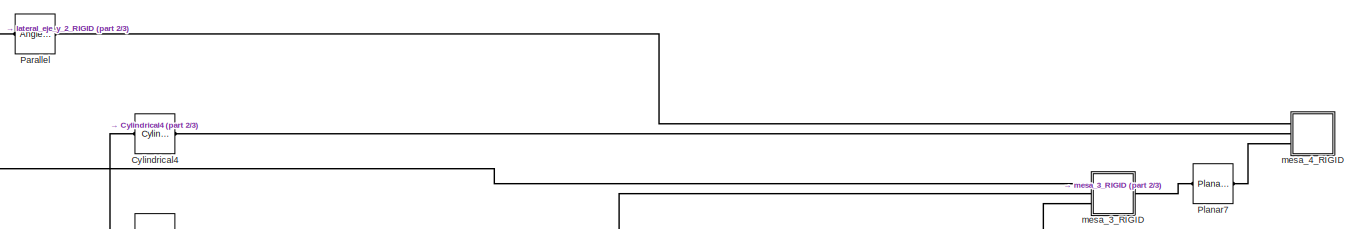
[diagram: root canvas - part 1/3, full width, top band]
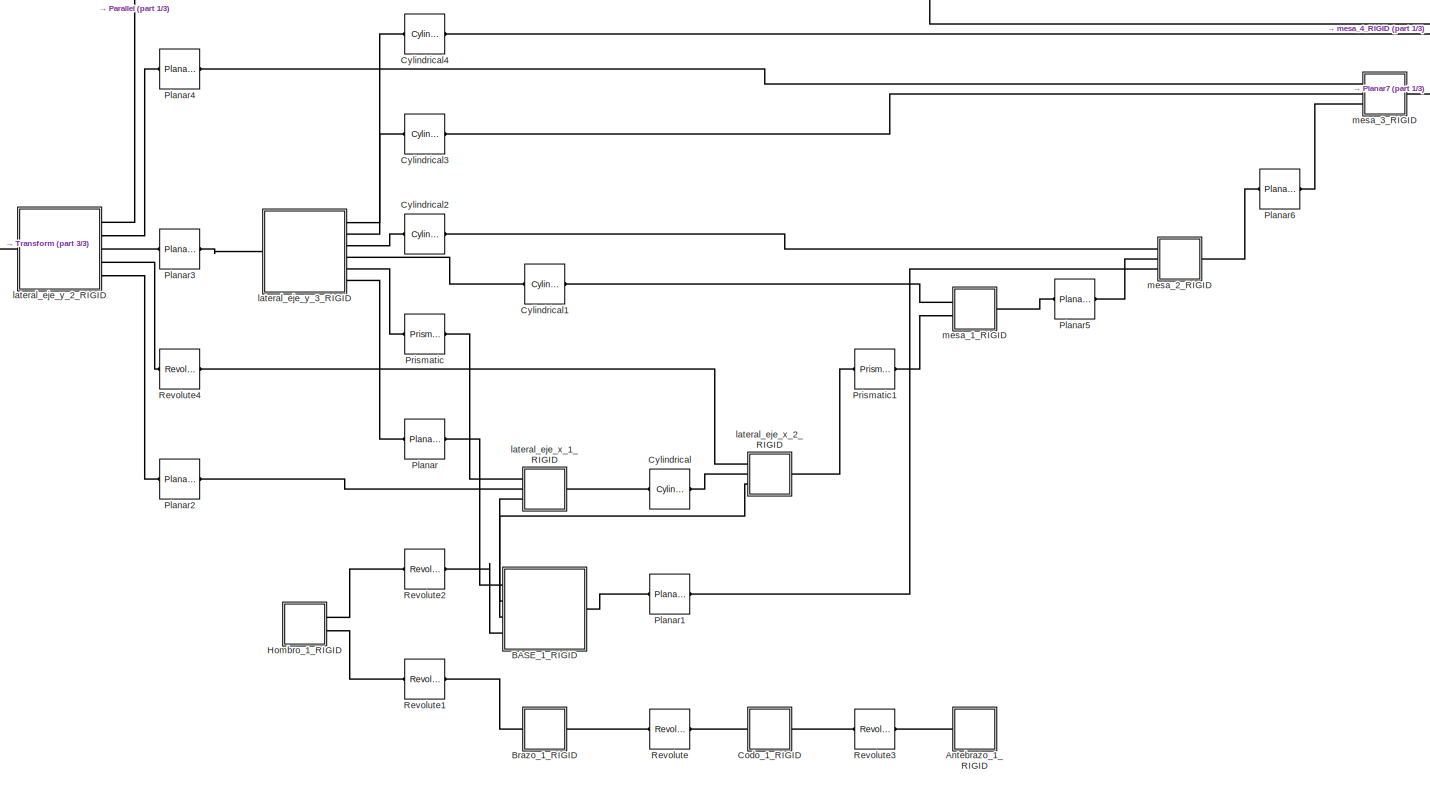
[diagram: root canvas - part 2/3, most of the canvas]
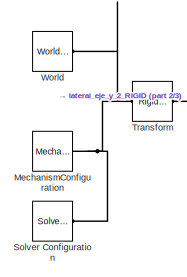
[diagram: root canvas - part 3/3, middle left region]
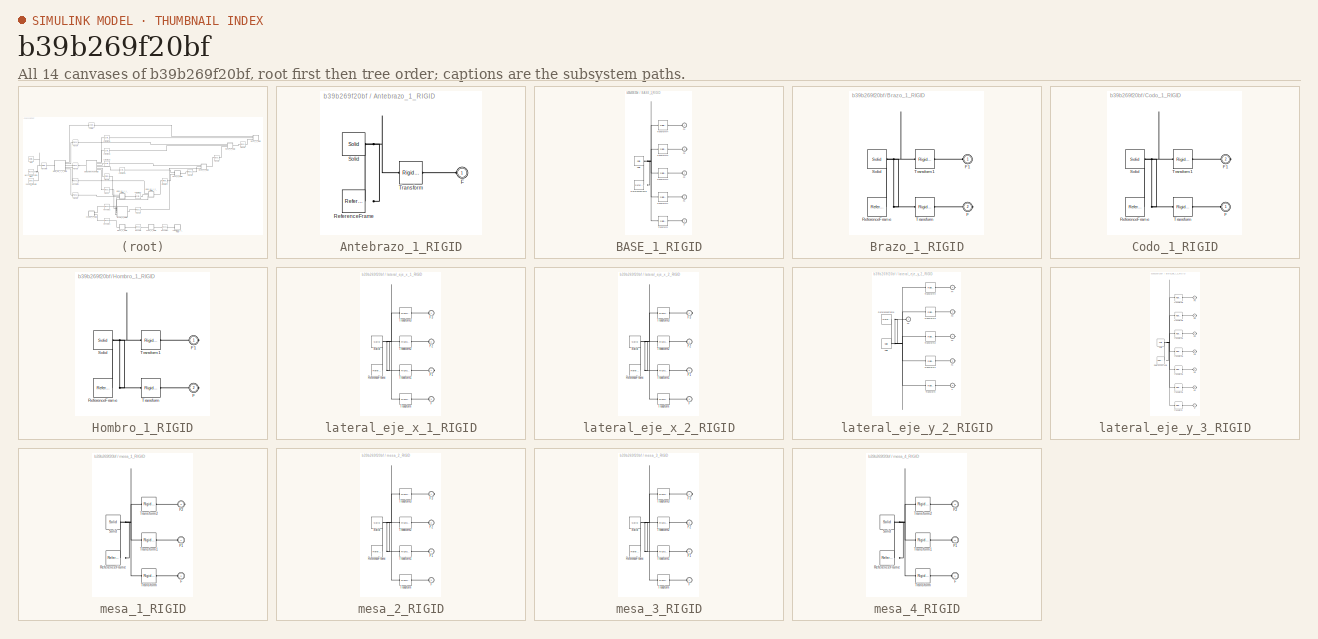
[diagram: thumbnail index - all 14 canvases of the model, root first then tree order]
MODEL slx_b39b269f20bf
KIND model
CONFIG AbsTol = auto
CONFIG EnableMultiTasking = off
CONFIG FixedStep = auto
CONFIG MaxStep = auto
CONFIG MinStep = auto
CONFIG RelTol = 1e-3
CONFIG SampleTimeConstraint = Unconstrained
CONFIG Solver = VariableStepAuto
CONFIG SolverName = VariableStepAuto
CONFIG StartTime = 0.0
CONFIG StopTime = 10.0
WORKSPACE source: external: MATLAB File  (data not in archive)
BLOCK [SubSystem] Antebrazo_1_RIGID
  Ports = [0, 0, 0, 0, 0, 1]
  RequestExecContextInheritance = off
  Variant = off
BLOCK [PMIOPort] Antebrazo_1_RIGID/F
  Port = 1
  Side = Left
BLOCK [Reference] Antebrazo_1_RIGID/ReferenceFrame  REF=sm_lib/Frames and
Transforms/Reference
Frame
  Ports = [0, 0, 0, 0, 0, 0, 1]
  SourceBlock = sm_lib/Frames and\nTransforms/Reference\nFrame
  SourceProductBaseCode = MS
  SourceProductName = Simscape Multibody
  SourceType = Reference\nFrame
BLOCK [Reference] Antebrazo_1_RIGID/Solid  REF=sm_lib/Body Elements/Solid
  Ports = [0, 0, 0, 0, 0, 0, 1]
  SourceBlock = sm_lib/Body Elements/Solid
  SourceProductBaseCode = MS
  SourceProductName = Simscape Multibody
  SourceType = Solid
BLOCK [Reference] Antebrazo_1_RIGID/Transform  REF=sm_lib/Frames and
Transforms/Rigid
Transform
  Ports = [0, 0, 0, 0, 0, 1, 1]
  SourceBlock = sm_lib/Frames and\nTransforms/Rigid\nTransform
  SourceProductBaseCode = MS
  SourceProductName = Simscape Multibody
  SourceType = Rigid\nTransform
BLOCK [SubSystem] BASE_1_RIGID
  Ports = [0, 0, 0, 0, 0, 4, 1]
  RequestExecContextInheritance = off
  Variant = off
BLOCK [PMIOPort] BASE_1_RIGID/F
  Port = 3
  Side = Left
BLOCK [PMIOPort] BASE_1_RIGID/F1
  Port = 2
  Side = Left
BLOCK [PMIOPort] BASE_1_RIGID/F2
  Port = 1
  Side = Left
BLOCK [PMIOPort] BASE_1_RIGID/F3
  Port = 5
  Side = Right
BLOCK [PMIOPort] BASE_1_RIGID/F4
  Port = 4
  Side = Left
BLOCK [Reference] BASE_1_RIGID/ReferenceFrame  REF=sm_lib/Frames and
Transforms/Reference
Frame
  Ports = [0, 0, 0, 0, 0, 0, 1]
  SourceBlock = sm_lib/Frames and\nTransforms/Reference\nFrame
  SourceProductBaseCode = MS
  SourceProductName = Simscape Multibody
  SourceType = Reference\nFrame
BLOCK [Reference] BASE_1_RIGID/Solid  REF=sm_lib/Body Elements/Solid
  Ports = [0, 0, 0, 0, 0, 0, 1]
  SourceBlock = sm_lib/Body Elements/Solid
  SourceProductBaseCode = MS
  SourceProductName = Simscape Multibody
  SourceType = Solid
BLOCK [Reference] BASE_1_RIGID/Transform  REF=sm_lib/Frames and
Transforms/Rigid
Transform
  Ports = [0, 0, 0, 0, 0, 1, 1]
  SourceBlock = sm_lib/Frames and\nTransforms/Rigid\nTransform
  SourceProductBaseCode = MS
  SourceProductName = Simscape Multibody
  SourceType = Rigid\nTransform
BLOCK [Reference] BASE_1_RIGID/Transform1  REF=sm_lib/Frames and
Transforms/Rigid
Transform
  Ports = [0, 0, 0, 0, 0, 1, 1]
  SourceBlock = sm_lib/Frames and\nTransforms/Rigid\nTransform
  SourceProductBaseCode = MS
  SourceProductName = Simscape Multibody
  SourceType = Rigid\nTransform
BLOCK [Reference] BASE_1_RIGID/Transform2  REF=sm_lib/Frames and
Transforms/Rigid
Transform
  Ports = [0, 0, 0, 0, 0, 1, 1]
  SourceBlock = sm_lib/Frames and\nTransforms/Rigid\nTransform
  SourceProductBaseCode = MS
  SourceProductName = Simscape Multibody
  SourceType = Rigid\nTransform
BLOCK [Reference] BASE_1_RIGID/Transform3  REF=sm_lib/Frames and
Transforms/Rigid
Transform
  Ports = [0, 0, 0, 0, 0, 1, 1]
  SourceBlock = sm_lib/Frames and\nTransforms/Rigid\nTransform
  SourceProductBaseCode = MS
  SourceProductName = Simscape Multibody
  SourceType = Rigid\nTransform
BLOCK [Reference] BASE_1_RIGID/Transform4  REF=sm_lib/Frames and
Transforms/Rigid
Transform
  Ports = [0, 0, 0, 0, 0, 1, 1]
  SourceBlock = sm_lib/Frames and\nTransforms/Rigid\nTransform
  SourceProductBaseCode = MS
  SourceProductName = Simscape Multibody
  SourceType = Rigid\nTransform
BLOCK [SubSystem] Brazo_1_RIGID
  Ports = [0, 0, 0, 0, 0, 1, 1]
  RequestExecContextInheritance = off
  Variant = off
BLOCK [PMIOPort] Brazo_1_RIGID/F
  Port = 2
  Side = Right
BLOCK [PMIOPort] Brazo_1_RIGID/F1
  Port = 1
  Side = Left
BLOCK [Reference] Brazo_1_RIGID/ReferenceFrame  REF=sm_lib/Frames and
Transforms/Reference
Frame
  Ports = [0, 0, 0, 0, 0, 0, 1]
  SourceBlock = sm_lib/Frames and\nTransforms/Reference\nFrame
  SourceProductBaseCode = MS
  SourceProductName = Simscape Multibody
  SourceType = Reference\nFrame
BLOCK [Reference] Brazo_1_RIGID/Solid  REF=sm_lib/Body Elements/Solid
  Ports = [0, 0, 0, 0, 0, 0, 1]
  SourceBlock = sm_lib/Body Elements/Solid
  SourceProductBaseCode = MS
  SourceProductName = Simscape Multibody
  SourceType = Solid
BLOCK [Reference] Brazo_1_RIGID/Transform  REF=sm_lib/Frames and
Transforms/Rigid
Transform
  Ports = [0, 0, 0, 0, 0, 1, 1]
  SourceBlock = sm_lib/Frames and\nTransforms/Rigid\nTransform
  SourceProductBaseCode = MS
  SourceProductName = Simscape Multibody
  SourceType = Rigid\nTransform
BLOCK [Reference] Brazo_1_RIGID/Transform1  REF=sm_lib/Frames and
Transforms/Rigid
Transform
  Ports = [0, 0, 0, 0, 0, 1, 1]
  SourceBlock = sm_lib/Frames and\nTransforms/Rigid\nTransform
  SourceProductBaseCode = MS
  SourceProductName = Simscape Multibody
  SourceType = Rigid\nTransform
BLOCK [SubSystem] Codo_1_RIGID
  Ports = [0, 0, 0, 0, 0, 1, 1]
  RequestExecContextInheritance = off
  Variant = off
BLOCK [PMIOPort] Codo_1_RIGID/F
  Port = 1
  Side = Left
BLOCK [PMIOPort] Codo_1_RIGID/F1
  Port = 2
  Side = Right
BLOCK [Reference] Codo_1_RIGID/ReferenceFrame  REF=sm_lib/Frames and
Transforms/Reference
Frame
  Ports = [0, 0, 0, 0, 0, 0, 1]
  SourceBlock = sm_lib/Frames and\nTransforms/Reference\nFrame
  SourceProductBaseCode = MS
  SourceProductName = Simscape Multibody
  SourceType = Reference\nFrame
BLOCK [Reference] Codo_1_RIGID/Solid  REF=sm_lib/Body Elements/Solid
  Ports = [0, 0, 0, 0, 0, 0, 1]
  SourceBlock = sm_lib/Body Elements/Solid
  SourceProductBaseCode = MS
  SourceProductName = Simscape Multibody
  SourceType = Solid
BLOCK [Reference] Codo_1_RIGID/Transform  REF=sm_lib/Frames and
Transforms/Rigid
Transform
  Ports = [0, 0, 0, 0, 0, 1, 1]
  SourceBlock = sm_lib/Frames and\nTransforms/Rigid\nTransform
  SourceProductBaseCode = MS
  SourceProductName = Simscape Multibody
  SourceType = Rigid\nTransform
BLOCK [Reference] Codo_1_RIGID/Transform1  REF=sm_lib/Frames and
Transforms/Rigid
Transform
  Ports = [0, 0, 0, 0, 0, 1, 1]
  SourceBlock = sm_lib/Frames and\nTransforms/Rigid\nTransform
  SourceProductBaseCode = MS
  SourceProductName = Simscape Multibody
  SourceType = Rigid\nTransform
BLOCK [Reference] Cylindrical  REF=sm_lib/Joints/Cylindrical
Joint
  Ports = [0, 0, 0, 0, 0, 1, 1]
  SourceBlock = sm_lib/Joints/Cylindrical\nJoint
  SourceProductBaseCode = MS
  SourceProductName = Simscape Multibody
  SourceType = Cylindrical\nJoint
BLOCK [Reference] Cylindrical1  REF=sm_lib/Joints/Cylindrical
Joint
  Ports = [0, 0, 0, 0, 0, 1, 1]
  SourceBlock = sm_lib/Joints/Cylindrical\nJoint
  SourceProductBaseCode = MS
  SourceProductName = Simscape Multibody
  SourceType = Cylindrical\nJoint
BLOCK [Reference] Cylindrical2  REF=sm_lib/Joints/Cylindrical
Joint
  Ports = [0, 0, 0, 0, 0, 1, 1]
  SourceBlock = sm_lib/Joints/Cylindrical\nJoint
  SourceProductBaseCode = MS
  SourceProductName = Simscape Multibody
  SourceType = Cylindrical\nJoint
BLOCK [Reference] Cylindrical3  REF=sm_lib/Joints/Cylindrical
Joint
  Ports = [0, 0, 0, 0, 0, 1, 1]
  SourceBlock = sm_lib/Joints/Cylindrical\nJoint
  SourceProductBaseCode = MS
  SourceProductName = Simscape Multibody
  SourceType = Cylindrical\nJoint
BLOCK [Reference] Cylindrical4  REF=sm_lib/Joints/Cylindrical
Joint
  Ports = [0, 0, 0, 0, 0, 1, 1]
  SourceBlock = sm_lib/Joints/Cylindrical\nJoint
  SourceProductBaseCode = MS
  SourceProductName = Simscape Multibody
  SourceType = Cylindrical\nJoint
BLOCK [SubSystem] Hombro_1_RIGID
  Ports = [0, 0, 0, 0, 0, 0, 2]
  RequestExecContextInheritance = off
  Variant = off
BLOCK [PMIOPort] Hombro_1_RIGID/F
  Port = 2
  Side = Right
BLOCK [PMIOPort] Hombro_1_RIGID/F1
  Port = 1
  Side = Right
BLOCK [Reference] Hombro_1_RIGID/ReferenceFrame  REF=sm_lib/Frames and
Transforms/Reference
Frame
  Ports = [0, 0, 0, 0, 0, 0, 1]
  SourceBlock = sm_lib/Frames and\nTransforms/Reference\nFrame
  SourceProductBaseCode = MS
  SourceProductName = Simscape Multibody
  SourceType = Reference\nFrame
BLOCK [Reference] Hombro_1_RIGID/Solid  REF=sm_lib/Body Elements/Solid
  Ports = [0, 0, 0, 0, 0, 0, 1]
  SourceBlock = sm_lib/Body Elements/Solid
  SourceProductBaseCode = MS
  SourceProductName = Simscape Multibody
  SourceType = Solid
BLOCK [Reference] Hombro_1_RIGID/Transform  REF=sm_lib/Frames and
Transforms/Rigid
Transform
  Ports = [0, 0, 0, 0, 0, 1, 1]
  SourceBlock = sm_lib/Frames and\nTransforms/Rigid\nTransform
  SourceProductBaseCode = MS
  SourceProductName = Simscape Multibody
  SourceType = Rigid\nTransform
BLOCK [Reference] Hombro_1_RIGID/Transform1  REF=sm_lib/Frames and
Transforms/Rigid
Transform
  Ports = [0, 0, 0, 0, 0, 1, 1]
  SourceBlock = sm_lib/Frames and\nTransforms/Rigid\nTransform
  SourceProductBaseCode = MS
  SourceProductName = Simscape Multibody
  SourceType = Rigid\nTransform
BLOCK [Reference] MechanismConfiguration  REF=sm_lib/Utilities/Mechanism
Configuration
  Ports = [0, 0, 0, 0, 0, 0, 1]
  SourceBlock = sm_lib/Utilities/Mechanism\nConfiguration
  SourceProductBaseCode = MS
  SourceProductName = Simscape Multibody
  SourceType = Mechanism\nConfiguration
BLOCK [Reference] Parallel  REF=sm_lib/Constraints/Angle
Constraint
  Ports = [0, 0, 0, 0, 0, 1, 1]
  SourceBlock = sm_lib/Constraints/Angle\nConstraint
  SourceProductBaseCode = MS
  SourceProductName = Simscape Multibody
  SourceType = Angle\nConstraint
BLOCK [Reference] Planar  REF=sm_lib/Joints/Planar Joint
  Ports = [0, 0, 0, 0, 0, 1, 1]
  SourceBlock = sm_lib/Joints/Planar Joint
  SourceProductBaseCode = MS
  SourceProductName = Simscape Multibody
  SourceType = Planar Joint
BLOCK [Reference] Planar1  REF=sm_lib/Joints/Planar Joint
  Ports = [0, 0, 0, 0, 0, 1, 1]
  SourceBlock = sm_lib/Joints/Planar Joint
  SourceProductBaseCode = MS
  SourceProductName = Simscape Multibody
  SourceType = Planar Joint
BLOCK [Reference] Planar2  REF=sm_lib/Joints/Planar Joint
  Ports = [0, 0, 0, 0, 0, 1, 1]
  SourceBlock = sm_lib/Joints/Planar Joint
  SourceProductBaseCode = MS
  SourceProductName = Simscape Multibody
  SourceType = Planar Joint
BLOCK [Reference] Planar3  REF=sm_lib/Joints/Planar Joint
  Ports = [0, 0, 0, 0, 0, 1, 1]
  SourceBlock = sm_lib/Joints/Planar Joint
  SourceProductBaseCode = MS
  SourceProductName = Simscape Multibody
  SourceType = Planar Joint
BLOCK [Reference] Planar4  REF=sm_lib/Joints/Planar Joint
  Ports = [0, 0, 0, 0, 0, 1, 1]
  SourceBlock = sm_lib/Joints/Planar Joint
  SourceProductBaseCode = MS
  SourceProductName = Simscape Multibody
  SourceType = Planar Joint
BLOCK [Reference] Planar5  REF=sm_lib/Joints/Planar Joint
  Ports = [0, 0, 0, 0, 0, 1, 1]
  SourceBlock = sm_lib/Joints/Planar Joint
  SourceProductBaseCode = MS
  SourceProductName = Simscape Multibody
  SourceType = Planar Joint
BLOCK [Reference] Planar6  REF=sm_lib/Joints/Planar Joint
  Ports = [0, 0, 0, 0, 0, 1, 1]
  SourceBlock = sm_lib/Joints/Planar Joint
  SourceProductBaseCode = MS
  SourceProductName = Simscape Multibody
  SourceType = Planar Joint
BLOCK [Reference] Planar7  REF=sm_lib/Joints/Planar Joint
  Ports = [0, 0, 0, 0, 0, 1, 1]
  SourceBlock = sm_lib/Joints/Planar Joint
  SourceProductBaseCode = MS
  SourceProductName = Simscape Multibody
  SourceType = Planar Joint
BLOCK [Reference] Prismatic  REF=sm_lib/Joints/Prismatic
Joint
  Ports = [0, 0, 0, 0, 0, 1, 1]
  SourceBlock = sm_lib/Joints/Prismatic\nJoint
  SourceProductBaseCode = MS
  SourceProductName = Simscape Multibody
  SourceType = Prismatic\nJoint
BLOCK [Reference] Prismatic1  REF=sm_lib/Joints/Prismatic
Joint
  Ports = [0, 0, 0, 0, 0, 1, 1]
  SourceBlock = sm_lib/Joints/Prismatic\nJoint
  SourceProductBaseCode = MS
  SourceProductName = Simscape Multibody
  SourceType = Prismatic\nJoint
BLOCK [Reference] Revolute  REF=sm_lib/Joints/Revolute Joint
  Ports = [0, 0, 0, 0, 0, 1, 1]
  SourceBlock = sm_lib/Joints/Revolute Joint
  SourceProductBaseCode = MS
  SourceProductName = Simscape Multibody
  SourceType = Revolute Joint
BLOCK [Reference] Revolute1  REF=sm_lib/Joints/Revolute Joint
  Ports = [0, 0, 0, 0, 0, 1, 1]
  SourceBlock = sm_lib/Joints/Revolute Joint
  SourceProductBaseCode = MS
  SourceProductName = Simscape Multibody
  SourceType = Revolute Joint
BLOCK [Reference] Revolute2  REF=sm_lib/Joints/Revolute Joint
  Ports = [0, 0, 0, 0, 0, 1, 1]
  SourceBlock = sm_lib/Joints/Revolute Joint
  SourceProductBaseCode = MS
  SourceProductName = Simscape Multibody
  SourceType = Revolute Joint
BLOCK [Reference] Revolute3  REF=sm_lib/Joints/Revolute Joint
  Ports = [0, 0, 0, 0, 0, 1, 1]
  SourceBlock = sm_lib/Joints/Revolute Joint
  SourceProductBaseCode = MS
  SourceProductName = Simscape Multibody
  SourceType = Revolute Joint
BLOCK [Reference] Revolute4  REF=sm_lib/Joints/Revolute Joint
  Ports = [0, 0, 0, 0, 0, 1, 1]
  SourceBlock = sm_lib/Joints/Revolute Joint
  SourceProductBaseCode = MS
  SourceProductName = Simscape Multibody
  SourceType = Revolute Joint
BLOCK [Reference] Solver Configuration  REF=nesl_utility/Solver
Configuration
  Ports = [0, 0, 0, 0, 0, 0, 1]
  SourceBlock = nesl_utility/Solver\nConfiguration
  SourceProductBaseCode = SS
  SourceProductName = Simscape
  SourceType = Solver\nConfiguration
BLOCK [Reference] Transform  REF=sm_lib/Frames and
Transforms/Rigid
Transform
  Ports = [0, 0, 0, 0, 0, 1, 1]
  SourceBlock = sm_lib/Frames and\nTransforms/Rigid\nTransform
  SourceProductBaseCode = MS
  SourceProductName = Simscape Multibody
  SourceType = Rigid\nTransform
BLOCK [Reference] World  REF=sm_lib/Frames and
Transforms/World Frame
  Ports = [0, 0, 0, 0, 0, 0, 1]
  SourceBlock = sm_lib/Frames and\nTransforms/World Frame
  SourceProductBaseCode = MS
  SourceProductName = Simscape Multibody
  SourceType = World Frame
BLOCK [SubSystem] lateral_eje_x_1_RIGID
  Ports = [0, 0, 0, 0, 0, 3, 1]
  RequestExecContextInheritance = off
  Variant = off
BLOCK [PMIOPort] lateral_eje_x_1_RIGID/F
  Port = 3
  Side = Left
BLOCK [PMIOPort] lateral_eje_x_1_RIGID/F1
  Port = 4
  Side = Right
BLOCK [PMIOPort] lateral_eje_x_1_RIGID/F2
  Port = 2
  Side = Left
BLOCK [PMIOPort] lateral_eje_x_1_RIGID/F3
  Port = 1
  Side = Left
BLOCK [Reference] lateral_eje_x_1_RIGID/ReferenceFrame  REF=sm_lib/Frames and
Transforms/Reference
Frame
  Ports = [0, 0, 0, 0, 0, 0, 1]
  SourceBlock = sm_lib/Frames and\nTransforms/Reference\nFrame
  SourceProductBaseCode = MS
  SourceProductName = Simscape Multibody
  SourceType = Reference\nFrame
BLOCK [Reference] lateral_eje_x_1_RIGID/Solid  REF=sm_lib/Body Elements/Solid
  Ports = [0, 0, 0, 0, 0, 0, 1]
  SourceBlock = sm_lib/Body Elements/Solid
  SourceProductBaseCode = MS
  SourceProductName = Simscape Multibody
  SourceType = Solid
BLOCK [Reference] lateral_eje_x_1_RIGID/Transform  REF=sm_lib/Frames and
Transforms/Rigid
Transform
  Ports = [0, 0, 0, 0, 0, 1, 1]
  SourceBlock = sm_lib/Frames and\nTransforms/Rigid\nTransform
  SourceProductBaseCode = MS
  SourceProductName = Simscape Multibody
  SourceType = Rigid\nTransform
BLOCK [Reference] lateral_eje_x_1_RIGID/Transform1  REF=sm_lib/Frames and
Transforms/Rigid
Transform
  Ports = [0, 0, 0, 0, 0, 1, 1]
  SourceBlock = sm_lib/Frames and\nTransforms/Rigid\nTransform
  SourceProductBaseCode = MS
  SourceProductName = Simscape Multibody
  SourceType = Rigid\nTransform
BLOCK [Reference] lateral_eje_x_1_RIGID/Transform2  REF=sm_lib/Frames and
Transforms/Rigid
Transform
  Ports = [0, 0, 0, 0, 0, 1, 1]
  SourceBlock = sm_lib/Frames and\nTransforms/Rigid\nTransform
  SourceProductBaseCode = MS
  SourceProductName = Simscape Multibody
  SourceType = Rigid\nTransform
BLOCK [Reference] lateral_eje_x_1_RIGID/Transform3  REF=sm_lib/Frames and
Transforms/Rigid
Transform
  Ports = [0, 0, 0, 0, 0, 1, 1]
  SourceBlock = sm_lib/Frames and\nTransforms/Rigid\nTransform
  SourceProductBaseCode = MS
  SourceProductName = Simscape Multibody
  SourceType = Rigid\nTransform
BLOCK [SubSystem] lateral_eje_x_2_RIGID
  Ports = [0, 0, 0, 0, 0, 3, 1]
  RequestExecContextInheritance = off
  Variant = off
BLOCK [PMIOPort] lateral_eje_x_2_RIGID/F
  Port = 3
  Side = Left
BLOCK [PMIOPort] lateral_eje_x_2_RIGID/F1
  Port = 2
  Side = Left
BLOCK [PMIOPort] lateral_eje_x_2_RIGID/F2
  Port = 1
  Side = Left
BLOCK [PMIOPort] lateral_eje_x_2_RIGID/F3
  Port = 4
  Side = Right
BLOCK [Reference] lateral_eje_x_2_RIGID/ReferenceFrame  REF=sm_lib/Frames and
Transforms/Reference
Frame
  Ports = [0, 0, 0, 0, 0, 0, 1]
  SourceBlock = sm_lib/Frames and\nTransforms/Reference\nFrame
  SourceProductBaseCode = MS
  SourceProductName = Simscape Multibody
  SourceType = Reference\nFrame
BLOCK [Reference] lateral_eje_x_2_RIGID/Solid  REF=sm_lib/Body Elements/Solid
  Ports = [0, 0, 0, 0, 0, 0, 1]
  SourceBlock = sm_lib/Body Elements/Solid
  SourceProductBaseCode = MS
  SourceProductName = Simscape Multibody
  SourceType = Solid
BLOCK [Reference] lateral_eje_x_2_RIGID/Transform  REF=sm_lib/Frames and
Transforms/Rigid
Transform
  Ports = [0, 0, 0, 0, 0, 1, 1]
  SourceBlock = sm_lib/Frames and\nTransforms/Rigid\nTransform
  SourceProductBaseCode = MS
  SourceProductName = Simscape Multibody
  SourceType = Rigid\nTransform
BLOCK [Reference] lateral_eje_x_2_RIGID/Transform1  REF=sm_lib/Frames and
Transforms/Rigid
Transform
  Ports = [0, 0, 0, 0, 0, 1, 1]
  SourceBlock = sm_lib/Frames and\nTransforms/Rigid\nTransform
  SourceProductBaseCode = MS
  SourceProductName = Simscape Multibody
  SourceType = Rigid\nTransform
BLOCK [Reference] lateral_eje_x_2_RIGID/Transform2  REF=sm_lib/Frames and
Transforms/Rigid
Transform
  Ports = [0, 0, 0, 0, 0, 1, 1]
  SourceBlock = sm_lib/Frames and\nTransforms/Rigid\nTransform
  SourceProductBaseCode = MS
  SourceProductName = Simscape Multibody
  SourceType = Rigid\nTransform
BLOCK [Reference] lateral_eje_x_2_RIGID/Transform3  REF=sm_lib/Frames and
Transforms/Rigid
Transform
  Ports = [0, 0, 0, 0, 0, 1, 1]
  SourceBlock = sm_lib/Frames and\nTransforms/Rigid\nTransform
  SourceProductBaseCode = MS
  SourceProductName = Simscape Multibody
  SourceType = Rigid\nTransform
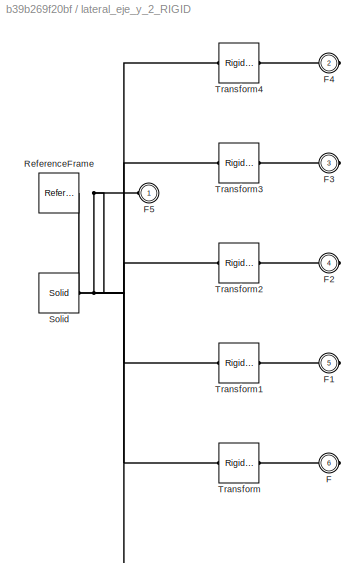
BLOCK [SubSystem] lateral_eje_y_2_RIGID
  Ports = [0, 0, 0, 0, 0, 1, 5]
  RequestExecContextInheritance = off
  Variant = off
BLOCK [PMIOPort] lateral_eje_y_2_RIGID/F
  Port = 6
  Side = Right
BLOCK [PMIOPort] lateral_eje_y_2_RIGID/F1
  Port = 5
  Side = Right
BLOCK [PMIOPort] lateral_eje_y_2_RIGID/F2
  Port = 4
  Side = Right
BLOCK [PMIOPort] lateral_eje_y_2_RIGID/F3
  Port = 3
  Side = Right
BLOCK [PMIOPort] lateral_eje_y_2_RIGID/F4
  Port = 2
  Side = Right
BLOCK [PMIOPort] lateral_eje_y_2_RIGID/F5
  Port = 1
  Side = Left
BLOCK [Reference] lateral_eje_y_2_RIGID/ReferenceFrame  REF=sm_lib/Frames and
Transforms/Reference
Frame
  Ports = [0, 0, 0, 0, 0, 0, 1]
  SourceBlock = sm_lib/Frames and\nTransforms/Reference\nFrame
  SourceProductBaseCode = MS
  SourceProductName = Simscape Multibody
  SourceType = Reference\nFrame
BLOCK [Reference] lateral_eje_y_2_RIGID/Solid  REF=sm_lib/Body Elements/Solid
  Ports = [0, 0, 0, 0, 0, 0, 1]
  SourceBlock = sm_lib/Body Elements/Solid
  SourceProductBaseCode = MS
  SourceProductName = Simscape Multibody
  SourceType = Solid
BLOCK [Reference] lateral_eje_y_2_RIGID/Transform  REF=sm_lib/Frames and
Transforms/Rigid
Transform
  Ports = [0, 0, 0, 0, 0, 1, 1]
  SourceBlock = sm_lib/Frames and\nTransforms/Rigid\nTransform
  SourceProductBaseCode = MS
  SourceProductName = Simscape Multibody
  SourceType = Rigid\nTransform
BLOCK [Reference] lateral_eje_y_2_RIGID/Transform1  REF=sm_lib/Frames and
Transforms/Rigid
Transform
  Ports = [0, 0, 0, 0, 0, 1, 1]
  SourceBlock = sm_lib/Frames and\nTransforms/Rigid\nTransform
  SourceProductBaseCode = MS
  SourceProductName = Simscape Multibody
  SourceType = Rigid\nTransform
BLOCK [Reference] lateral_eje_y_2_RIGID/Transform2  REF=sm_lib/Frames and
Transforms/Rigid
Transform
  Ports = [0, 0, 0, 0, 0, 1, 1]
  SourceBlock = sm_lib/Frames and\nTransforms/Rigid\nTransform
  SourceProductBaseCode = MS
  SourceProductName = Simscape Multibody
  SourceType = Rigid\nTransform
BLOCK [Reference] lateral_eje_y_2_RIGID/Transform3  REF=sm_lib/Frames and
Transforms/Rigid
Transform
  Ports = [0, 0, 0, 0, 0, 1, 1]
  SourceBlock = sm_lib/Frames and\nTransforms/Rigid\nTransform
  SourceProductBaseCode = MS
  SourceProductName = Simscape Multibody
  SourceType = Rigid\nTransform
BLOCK [Reference] lateral_eje_y_2_RIGID/Transform4  REF=sm_lib/Frames and
Transforms/Rigid
Transform
  Ports = [0, 0, 0, 0, 0, 1, 1]
  SourceBlock = sm_lib/Frames and\nTransforms/Rigid\nTransform
  SourceProductBaseCode = MS
  SourceProductName = Simscape Multibody
  SourceType = Rigid\nTransform
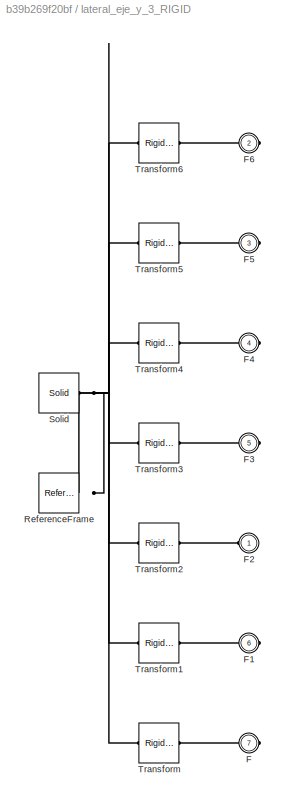
BLOCK [SubSystem] lateral_eje_y_3_RIGID
  Ports = [0, 0, 0, 0, 0, 1, 6]
  RequestExecContextInheritance = off
  Variant = off
BLOCK [PMIOPort] lateral_eje_y_3_RIGID/F
  Port = 7
  Side = Right
BLOCK [PMIOPort] lateral_eje_y_3_RIGID/F1
  Port = 6
  Side = Right
BLOCK [PMIOPort] lateral_eje_y_3_RIGID/F2
  Port = 1
  Side = Left
BLOCK [PMIOPort] lateral_eje_y_3_RIGID/F3
  Port = 5
  Side = Right
BLOCK [PMIOPort] lateral_eje_y_3_RIGID/F4
  Port = 4
  Side = Right
BLOCK [PMIOPort] lateral_eje_y_3_RIGID/F5
  Port = 3
  Side = Right
BLOCK [PMIOPort] lateral_eje_y_3_RIGID/F6
  Port = 2
  Side = Right
BLOCK [Reference] lateral_eje_y_3_RIGID/ReferenceFrame  REF=sm_lib/Frames and
Transforms/Reference
Frame
  Ports = [0, 0, 0, 0, 0, 0, 1]
  SourceBlock = sm_lib/Frames and\nTransforms/Reference\nFrame
  SourceProductBaseCode = MS
  SourceProductName = Simscape Multibody
  SourceType = Reference\nFrame
BLOCK [Reference] lateral_eje_y_3_RIGID/Solid  REF=sm_lib/Body Elements/Solid
  Ports = [0, 0, 0, 0, 0, 0, 1]
  SourceBlock = sm_lib/Body Elements/Solid
  SourceProductBaseCode = MS
  SourceProductName = Simscape Multibody
  SourceType = Solid
BLOCK [Reference] lateral_eje_y_3_RIGID/Transform  REF=sm_lib/Frames and
Transforms/Rigid
Transform
  Ports = [0, 0, 0, 0, 0, 1, 1]
  SourceBlock = sm_lib/Frames and\nTransforms/Rigid\nTransform
  SourceProductBaseCode = MS
  SourceProductName = Simscape Multibody
  SourceType = Rigid\nTransform
BLOCK [Reference] lateral_eje_y_3_RIGID/Transform1  REF=sm_lib/Frames and
Transforms/Rigid
Transform
  Ports = [0, 0, 0, 0, 0, 1, 1]
  SourceBlock = sm_lib/Frames and\nTransforms/Rigid\nTransform
  SourceProductBaseCode = MS
  SourceProductName = Simscape Multibody
  SourceType = Rigid\nTransform
BLOCK [Reference] lateral_eje_y_3_RIGID/Transform2  REF=sm_lib/Frames and
Transforms/Rigid
Transform
  Ports = [0, 0, 0, 0, 0, 1, 1]
  SourceBlock = sm_lib/Frames and\nTransforms/Rigid\nTransform
  SourceProductBaseCode = MS
  SourceProductName = Simscape Multibody
  SourceType = Rigid\nTransform
BLOCK [Reference] lateral_eje_y_3_RIGID/Transform3  REF=sm_lib/Frames and
Transforms/Rigid
Transform
  Ports = [0, 0, 0, 0, 0, 1, 1]
  SourceBlock = sm_lib/Frames and\nTransforms/Rigid\nTransform
  SourceProductBaseCode = MS
  SourceProductName = Simscape Multibody
  SourceType = Rigid\nTransform
BLOCK [Reference] lateral_eje_y_3_RIGID/Transform4  REF=sm_lib/Frames and
Transforms/Rigid
Transform
  Ports = [0, 0, 0, 0, 0, 1, 1]
  SourceBlock = sm_lib/Frames and\nTransforms/Rigid\nTransform
  SourceProductBaseCode = MS
  SourceProductName = Simscape Multibody
  SourceType = Rigid\nTransform
BLOCK [Reference] lateral_eje_y_3_RIGID/Transform5  REF=sm_lib/Frames and
Transforms/Rigid
Transform
  Ports = [0, 0, 0, 0, 0, 1, 1]
  SourceBlock = sm_lib/Frames and\nTransforms/Rigid\nTransform
  SourceProductBaseCode = MS
  SourceProductName = Simscape Multibody
  SourceType = Rigid\nTransform
BLOCK [Reference] lateral_eje_y_3_RIGID/Transform6  REF=sm_lib/Frames and
Transforms/Rigid
Transform
  Ports = [0, 0, 0, 0, 0, 1, 1]
  SourceBlock = sm_lib/Frames and\nTransforms/Rigid\nTransform
  SourceProductBaseCode = MS
  SourceProductName = Simscape Multibody
  SourceType = Rigid\nTransform
BLOCK [SubSystem] mesa_1_RIGID
  Ports = [0, 0, 0, 0, 0, 2, 1]
  RequestExecContextInheritance = off
  Variant = off
BLOCK [PMIOPort] mesa_1_RIGID/F
  Port = 2
  Side = Left
BLOCK [PMIOPort] mesa_1_RIGID/F1
  Port = 1
  Side = Left
BLOCK [PMIOPort] mesa_1_RIGID/F2
  Port = 3
  Side = Right
BLOCK [Reference] mesa_1_RIGID/ReferenceFrame  REF=sm_lib/Frames and
Transforms/Reference
Frame
  Ports = [0, 0, 0, 0, 0, 0, 1]
  SourceBlock = sm_lib/Frames and\nTransforms/Reference\nFrame
  SourceProductBaseCode = MS
  SourceProductName = Simscape Multibody
  SourceType = Reference\nFrame
BLOCK [Reference] mesa_1_RIGID/Solid  REF=sm_lib/Body Elements/Solid
  Ports = [0, 0, 0, 0, 0, 0, 1]
  SourceBlock = sm_lib/Body Elements/Solid
  SourceProductBaseCode = MS
  SourceProductName = Simscape Multibody
  SourceType = Solid
BLOCK [Reference] mesa_1_RIGID/Transform  REF=sm_lib/Frames and
Transforms/Rigid
Transform
  Ports = [0, 0, 0, 0, 0, 1, 1]
  SourceBlock = sm_lib/Frames and\nTransforms/Rigid\nTransform
  SourceProductBaseCode = MS
  SourceProductName = Simscape Multibody
  SourceType = Rigid\nTransform
BLOCK [Reference] mesa_1_RIGID/Transform1  REF=sm_lib/Frames and
Transforms/Rigid
Transform
  Ports = [0, 0, 0, 0, 0, 1, 1]
  SourceBlock = sm_lib/Frames and\nTransforms/Rigid\nTransform
  SourceProductBaseCode = MS
  SourceProductName = Simscape Multibody
  SourceType = Rigid\nTransform
BLOCK [Reference] mesa_1_RIGID/Transform2  REF=sm_lib/Frames and
Transforms/Rigid
Transform
  Ports = [0, 0, 0, 0, 0, 1, 1]
  SourceBlock = sm_lib/Frames and\nTransforms/Rigid\nTransform
  SourceProductBaseCode = MS
  SourceProductName = Simscape Multibody
  SourceType = Rigid\nTransform
BLOCK [SubSystem] mesa_2_RIGID
  Ports = [0, 0, 0, 0, 0, 3, 1]
  RequestExecContextInheritance = off
  Variant = off
BLOCK [PMIOPort] mesa_2_RIGID/F
  Port = 3
  Side = Left
BLOCK [PMIOPort] mesa_2_RIGID/F1
  Port = 1
  Side = Left
BLOCK [PMIOPort] mesa_2_RIGID/F2
  Port = 2
  Side = Left
BLOCK [PMIOPort] mesa_2_RIGID/F3
  Port = 4
  Side = Right
BLOCK [Reference] mesa_2_RIGID/ReferenceFrame  REF=sm_lib/Frames and
Transforms/Reference
Frame
  Ports = [0, 0, 0, 0, 0, 0, 1]
  SourceBlock = sm_lib/Frames and\nTransforms/Reference\nFrame
  SourceProductBaseCode = MS
  SourceProductName = Simscape Multibody
  SourceType = Reference\nFrame
BLOCK [Reference] mesa_2_RIGID/Solid  REF=sm_lib/Body Elements/Solid
  Ports = [0, 0, 0, 0, 0, 0, 1]
  SourceBlock = sm_lib/Body Elements/Solid
  SourceProductBaseCode = MS
  SourceProductName = Simscape Multibody
  SourceType = Solid
BLOCK [Reference] mesa_2_RIGID/Transform  REF=sm_lib/Frames and
Transforms/Rigid
Transform
  Ports = [0, 0, 0, 0, 0, 1, 1]
  SourceBlock = sm_lib/Frames and\nTransforms/Rigid\nTransform
  SourceProductBaseCode = MS
  SourceProductName = Simscape Multibody
  SourceType = Rigid\nTransform
BLOCK [Reference] mesa_2_RIGID/Transform1  REF=sm_lib/Frames and
Transforms/Rigid
Transform
  Ports = [0, 0, 0, 0, 0, 1, 1]
  SourceBlock = sm_lib/Frames and\nTransforms/Rigid\nTransform
  SourceProductBaseCode = MS
  SourceProductName = Simscape Multibody
  SourceType = Rigid\nTransform
BLOCK [Reference] mesa_2_RIGID/Transform2  REF=sm_lib/Frames and
Transforms/Rigid
Transform
  Ports = [0, 0, 0, 0, 0, 1, 1]
  SourceBlock = sm_lib/Frames and\nTransforms/Rigid\nTransform
  SourceProductBaseCode = MS
  SourceProductName = Simscape Multibody
  SourceType = Rigid\nTransform
BLOCK [Reference] mesa_2_RIGID/Transform3  REF=sm_lib/Frames and
Transforms/Rigid
Transform
  Ports = [0, 0, 0, 0, 0, 1, 1]
  SourceBlock = sm_lib/Frames and\nTransforms/Rigid\nTransform
  SourceProductBaseCode = MS
  SourceProductName = Simscape Multibody
  SourceType = Rigid\nTransform
BLOCK [SubSystem] mesa_3_RIGID
  Ports = [0, 0, 0, 0, 0, 3, 1]
  RequestExecContextInheritance = off
  Variant = off
BLOCK [PMIOPort] mesa_3_RIGID/F
  Port = 1
  Side = Left
BLOCK [PMIOPort] mesa_3_RIGID/F1
  Port = 2
  Side = Left
BLOCK [PMIOPort] mesa_3_RIGID/F2
  Port = 3
  Side = Left
BLOCK [PMIOPort] mesa_3_RIGID/F3
  Port = 4
  Side = Right
BLOCK [Reference] mesa_3_RIGID/ReferenceFrame  REF=sm_lib/Frames and
Transforms/Reference
Frame
  Ports = [0, 0, 0, 0, 0, 0, 1]
  SourceBlock = sm_lib/Frames and\nTransforms/Reference\nFrame
  SourceProductBaseCode = MS
  SourceProductName = Simscape Multibody
  SourceType = Reference\nFrame
BLOCK [Reference] mesa_3_RIGID/Solid  REF=sm_lib/Body Elements/Solid
  Ports = [0, 0, 0, 0, 0, 0, 1]
  SourceBlock = sm_lib/Body Elements/Solid
  SourceProductBaseCode = MS
  SourceProductName = Simscape Multibody
  SourceType = Solid
BLOCK [Reference] mesa_3_RIGID/Transform  REF=sm_lib/Frames and
Transforms/Rigid
Transform
  Ports = [0, 0, 0, 0, 0, 1, 1]
  SourceBlock = sm_lib/Frames and\nTransforms/Rigid\nTransform
  SourceProductBaseCode = MS
  SourceProductName = Simscape Multibody
  SourceType = Rigid\nTransform
BLOCK [Reference] mesa_3_RIGID/Transform1  REF=sm_lib/Frames and
Transforms/Rigid
Transform
  Ports = [0, 0, 0, 0, 0, 1, 1]
  SourceBlock = sm_lib/Frames and\nTransforms/Rigid\nTransform
  SourceProductBaseCode = MS
  SourceProductName = Simscape Multibody
  SourceType = Rigid\nTransform
BLOCK [Reference] mesa_3_RIGID/Transform2  REF=sm_lib/Frames and
Transforms/Rigid
Transform
  Ports = [0, 0, 0, 0, 0, 1, 1]
  SourceBlock = sm_lib/Frames and\nTransforms/Rigid\nTransform
  SourceProductBaseCode = MS
  SourceProductName = Simscape Multibody
  SourceType = Rigid\nTransform
BLOCK [Reference] mesa_3_RIGID/Transform3  REF=sm_lib/Frames and
Transforms/Rigid
Transform
  Ports = [0, 0, 0, 0, 0, 1, 1]
  SourceBlock = sm_lib/Frames and\nTransforms/Rigid\nTransform
  SourceProductBaseCode = MS
  SourceProductName = Simscape Multibody
  SourceType = Rigid\nTransform
BLOCK [SubSystem] mesa_4_RIGID
  Ports = [0, 0, 0, 0, 0, 3]
  RequestExecContextInheritance = off
  Variant = off
BLOCK [PMIOPort] mesa_4_RIGID/F
  Port = 1
  Side = Left
BLOCK [PMIOPort] mesa_4_RIGID/F1
  Port = 2
  Side = Left
BLOCK [PMIOPort] mesa_4_RIGID/F2
  Port = 3
  Side = Left
BLOCK [Reference] mesa_4_RIGID/ReferenceFrame  REF=sm_lib/Frames and
Transforms/Reference
Frame
  Ports = [0, 0, 0, 0, 0, 0, 1]
  SourceBlock = sm_lib/Frames and\nTransforms/Reference\nFrame
  SourceProductBaseCode = MS
  SourceProductName = Simscape Multibody
  SourceType = Reference\nFrame
BLOCK [Reference] mesa_4_RIGID/Solid  REF=sm_lib/Body Elements/Solid
  Ports = [0, 0, 0, 0, 0, 0, 1]
  SourceBlock = sm_lib/Body Elements/Solid
  SourceProductBaseCode = MS
  SourceProductName = Simscape Multibody
  SourceType = Solid
BLOCK [Reference] mesa_4_RIGID/Transform  REF=sm_lib/Frames and
Transforms/Rigid
Transform
  Ports = [0, 0, 0, 0, 0, 1, 1]
  SourceBlock = sm_lib/Frames and\nTransforms/Rigid\nTransform
  SourceProductBaseCode = MS
  SourceProductName = Simscape Multibody
  SourceType = Rigid\nTransform
BLOCK [Reference] mesa_4_RIGID/Transform1  REF=sm_lib/Frames and
Transforms/Rigid
Transform
  Ports = [0, 0, 0, 0, 0, 1, 1]
  SourceBlock = sm_lib/Frames and\nTransforms/Rigid\nTransform
  SourceProductBaseCode = MS
  SourceProductName = Simscape Multibody
  SourceType = Rigid\nTransform
BLOCK [Reference] mesa_4_RIGID/Transform2  REF=sm_lib/Frames and
Transforms/Rigid
Transform
  Ports = [0, 0, 0, 0, 0, 1, 1]
  SourceBlock = sm_lib/Frames and\nTransforms/Rigid\nTransform
  SourceProductBaseCode = MS
  SourceProductName = Simscape Multibody
  SourceType = Rigid\nTransform
PLINE Antebrazo_1_RIGID/F:RConn1 -- Antebrazo_1_RIGID/Transform:RConn1
PNET net1: Antebrazo_1_RIGID/ReferenceFrame:RConn1 -- Antebrazo_1_RIGID/Solid:RConn1 -- Antebrazo_1_RIGID/Transform:LConn1
PLINE Antebrazo_1_RIGID:LConn1 -- Revolute3:RConn1
PLINE BASE_1_RIGID/F1:RConn1 -- BASE_1_RIGID/Transform1:RConn1
PLINE BASE_1_RIGID/F2:RConn1 -- BASE_1_RIGID/Transform2:RConn1
PLINE BASE_1_RIGID/F3:RConn1 -- BASE_1_RIGID/Transform3:RConn1
PLINE BASE_1_RIGID/F4:RConn1 -- BASE_1_RIGID/Transform4:RConn1
PLINE BASE_1_RIGID/F:RConn1 -- BASE_1_RIGID/Transform:RConn1
PNET net2: BASE_1_RIGID/ReferenceFrame:RConn1 -- BASE_1_RIGID/Solid:RConn1 -- BASE_1_RIGID/Transform1:LConn1 -- BASE_1_RIGID/Transform2:LConn1 -- BASE_1_RIGID/Transform3:LConn1 -- BASE_1_RIGID/Transform4:LConn1 -- BASE_1_RIGID/Transform:LConn1
PLINE BASE_1_RIGID:LConn1 -- Planar:RConn1
PLINE BASE_1_RIGID:LConn2 -- lateral_eje_x_2_RIGID:LConn3
PLINE BASE_1_RIGID:LConn3 -- lateral_eje_x_1_RIGID:LConn3
PLINE BASE_1_RIGID:LConn4 -- Revolute2:RConn1
PLINE BASE_1_RIGID:RConn1 -- Planar1:LConn1
PLINE Brazo_1_RIGID/F1:RConn1 -- Brazo_1_RIGID/Transform1:RConn1
PLINE Brazo_1_RIGID/F:RConn1 -- Brazo_1_RIGID/Transform:RConn1
PNET net3: Brazo_1_RIGID/ReferenceFrame:RConn1 -- Brazo_1_RIGID/Solid:RConn1 -- Brazo_1_RIGID/Transform1:LConn1 -- Brazo_1_RIGID/Transform:LConn1
PLINE Brazo_1_RIGID:LConn1 -- Revolute1:RConn1
PLINE Brazo_1_RIGID:RConn1 -- Revolute:LConn1
PLINE Codo_1_RIGID/F1:RConn1 -- Codo_1_RIGID/Transform1:RConn1
PLINE Codo_1_RIGID/F:RConn1 -- Codo_1_RIGID/Transform:RConn1
PNET net4: Codo_1_RIGID/ReferenceFrame:RConn1 -- Codo_1_RIGID/Solid:RConn1 -- Codo_1_RIGID/Transform1:LConn1 -- Codo_1_RIGID/Transform:LConn1
PLINE Codo_1_RIGID:LConn1 -- Revolute:RConn1
PLINE Codo_1_RIGID:RConn1 -- Revolute3:LConn1
PLINE Cylindrical1:LConn1 -- lateral_eje_y_3_RIGID:RConn4
PLINE Cylindrical1:RConn1 -- mesa_1_RIGID:LConn1
PLINE Cylindrical2:LConn1 -- lateral_eje_y_3_RIGID:RConn3
PLINE Cylindrical2:RConn1 -- mesa_2_RIGID:LConn1
PLINE Cylindrical3:LConn1 -- lateral_eje_y_3_RIGID:RConn2
PLINE Cylindrical3:RConn1 -- mesa_3_RIGID:LConn2
PLINE Cylindrical4:LConn1 -- lateral_eje_y_3_RIGID:RConn1
PLINE Cylindrical4:RConn1 -- mesa_4_RIGID:LConn2
PLINE Cylindrical:LConn1 -- lateral_eje_x_1_RIGID:RConn1
PLINE Cylindrical:RConn1 -- lateral_eje_x_2_RIGID:LConn2
PLINE Hombro_1_RIGID/F1:RConn1 -- Hombro_1_RIGID/Transform1:RConn1
PLINE Hombro_1_RIGID/F:RConn1 -- Hombro_1_RIGID/Transform:RConn1
PNET net5: Hombro_1_RIGID/ReferenceFrame:RConn1 -- Hombro_1_RIGID/Solid:RConn1 -- Hombro_1_RIGID/Transform1:LConn1 -- Hombro_1_RIGID/Transform:LConn1
PLINE Hombro_1_RIGID:RConn1 -- Revolute2:LConn1
PLINE Hombro_1_RIGID:RConn2 -- Revolute1:LConn1
PNET net6: MechanismConfiguration:RConn1 -- Solver Configuration:RConn1 -- Transform:LConn1 -- World:RConn1
PLINE Parallel:LConn1 -- lateral_eje_y_2_RIGID:RConn1
PLINE Parallel:RConn1 -- mesa_4_RIGID:LConn1
PLINE Planar1:RConn1 -- mesa_2_RIGID:LConn3
PLINE Planar2:LConn1 -- lateral_eje_y_2_RIGID:RConn5
PLINE Planar2:RConn1 -- lateral_eje_x_1_RIGID:LConn2
PLINE Planar3:LConn1 -- lateral_eje_y_2_RIGID:RConn3
PLINE Planar3:RConn1 -- lateral_eje_y_3_RIGID:LConn1
PLINE Planar4:LConn1 -- lateral_eje_y_2_RIGID:RConn2
PLINE Planar4:RConn1 -- mesa_3_RIGID:LConn1
PLINE Planar5:LConn1 -- mesa_1_RIGID:RConn1
PLINE Planar5:RConn1 -- mesa_2_RIGID:LConn2
PLINE Planar6:LConn1 -- mesa_2_RIGID:RConn1
PLINE Planar6:RConn1 -- mesa_3_RIGID:LConn3
PLINE Planar7:LConn1 -- mesa_3_RIGID:RConn1
PLINE Planar7:RConn1 -- mesa_4_RIGID:LConn3
PLINE Planar:LConn1 -- lateral_eje_y_3_RIGID:RConn6
PLINE Prismatic1:LConn1 -- lateral_eje_x_2_RIGID:RConn1
PLINE Prismatic1:RConn1 -- mesa_1_RIGID:LConn2
PLINE Prismatic:LConn1 -- lateral_eje_y_3_RIGID:RConn5
PLINE Prismatic:RConn1 -- lateral_eje_x_1_RIGID:LConn1
PLINE Revolute4:LConn1 -- lateral_eje_y_2_RIGID:RConn4
PLINE Revolute4:RConn1 -- lateral_eje_x_2_RIGID:LConn1
PLINE Transform:RConn1 -- lateral_eje_y_2_RIGID:LConn1
PLINE lateral_eje_x_1_RIGID/F1:RConn1 -- lateral_eje_x_1_RIGID/Transform1:RConn1
PLINE lateral_eje_x_1_RIGID/F2:RConn1 -- lateral_eje_x_1_RIGID/Transform2:RConn1
PLINE lateral_eje_x_1_RIGID/F3:RConn1 -- lateral_eje_x_1_RIGID/Transform3:RConn1
PLINE lateral_eje_x_1_RIGID/F:RConn1 -- lateral_eje_x_1_RIGID/Transform:RConn1
PNET net7: lateral_eje_x_1_RIGID/ReferenceFrame:RConn1 -- lateral_eje_x_1_RIGID/Solid:RConn1 -- lateral_eje_x_1_RIGID/Transform1:LConn1 -- lateral_eje_x_1_RIGID/Transform2:LConn1 -- lateral_eje_x_1_RIGID/Transform3:LConn1 -- lateral_eje_x_1_RIGID/Transform:LConn1
PLINE lateral_eje_x_2_RIGID/F1:RConn1 -- lateral_eje_x_2_RIGID/Transform1:RConn1
PLINE lateral_eje_x_2_RIGID/F2:RConn1 -- lateral_eje_x_2_RIGID/Transform2:RConn1
PLINE lateral_eje_x_2_RIGID/F3:RConn1 -- lateral_eje_x_2_RIGID/Transform3:RConn1
PLINE lateral_eje_x_2_RIGID/F:RConn1 -- lateral_eje_x_2_RIGID/Transform:RConn1
PNET net8: lateral_eje_x_2_RIGID/ReferenceFrame:RConn1 -- lateral_eje_x_2_RIGID/Solid:RConn1 -- lateral_eje_x_2_RIGID/Transform1:LConn1 -- lateral_eje_x_2_RIGID/Transform2:LConn1 -- lateral_eje_x_2_RIGID/Transform3:LConn1 -- lateral_eje_x_2_RIGID/Transform:LConn1
PLINE lateral_eje_y_2_RIGID/F1:RConn1 -- lateral_eje_y_2_RIGID/Transform1:RConn1
PLINE lateral_eje_y_2_RIGID/F2:RConn1 -- lateral_eje_y_2_RIGID/Transform2:RConn1
PLINE lateral_eje_y_2_RIGID/F3:RConn1 -- lateral_eje_y_2_RIGID/Transform3:RConn1
PLINE lateral_eje_y_2_RIGID/F4:RConn1 -- lateral_eje_y_2_RIGID/Transform4:RConn1
PNET net9: lateral_eje_y_2_RIGID/F5:RConn1 -- lateral_eje_y_2_RIGID/ReferenceFrame:RConn1 -- lateral_eje_y_2_RIGID/Solid:RConn1 -- lateral_eje_y_2_RIGID/Transform1:LConn1 -- lateral_eje_y_2_RIGID/Transform2:LConn1 -- lateral_eje_y_2_RIGID/Transform3:LConn1 -- lateral_eje_y_2_RIGID/Transform4:LConn1 -- lateral_eje_y_2_RIGID/Transform:LConn1
PLINE lateral_eje_y_2_RIGID/F:RConn1 -- lateral_eje_y_2_RIGID/Transform:RConn1
PLINE lateral_eje_y_3_RIGID/F1:RConn1 -- lateral_eje_y_3_RIGID/Transform1:RConn1
PLINE lateral_eje_y_3_RIGID/F2:RConn1 -- lateral_eje_y_3_RIGID/Transform2:RConn1
PLINE lateral_eje_y_3_RIGID/F3:RConn1 -- lateral_eje_y_3_RIGID/Transform3:RConn1
PLINE lateral_eje_y_3_RIGID/F4:RConn1 -- lateral_eje_y_3_RIGID/Transform4:RConn1
PLINE lateral_eje_y_3_RIGID/F5:RConn1 -- lateral_eje_y_3_RIGID/Transform5:RConn1
PLINE lateral_eje_y_3_RIGID/F6:RConn1 -- lateral_eje_y_3_RIGID/Transform6:RConn1
PLINE lateral_eje_y_3_RIGID/F:RConn1 -- lateral_eje_y_3_RIGID/Transform:RConn1
PNET net10: lateral_eje_y_3_RIGID/ReferenceFrame:RConn1 -- lateral_eje_y_3_RIGID/Solid:RConn1 -- lateral_eje_y_3_RIGID/Transform1:LConn1 -- lateral_eje_y_3_RIGID/Transform2:LConn1 -- lateral_eje_y_3_RIGID/Transform3:LConn1 -- lateral_eje_y_3_RIGID/Transform4:LConn1 -- lateral_eje_y_3_RIGID/Transform5:LConn1 -- lateral_eje_y_3_RIGID/Transform6:LConn1 -- lateral_eje_y_3_RIGID/Transform:LConn1
PLINE mesa_1_RIGID/F1:RConn1 -- mesa_1_RIGID/Transform1:RConn1
PLINE mesa_1_RIGID/F2:RConn1 -- mesa_1_RIGID/Transform2:RConn1
PLINE mesa_1_RIGID/F:RConn1 -- mesa_1_RIGID/Transform:RConn1
PNET net11: mesa_1_RIGID/ReferenceFrame:RConn1 -- mesa_1_RIGID/Solid:RConn1 -- mesa_1_RIGID/Transform1:LConn1 -- mesa_1_RIGID/Transform2:LConn1 -- mesa_1_RIGID/Transform:LConn1
PLINE mesa_2_RIGID/F1:RConn1 -- mesa_2_RIGID/Transform1:RConn1
PLINE mesa_2_RIGID/F2:RConn1 -- mesa_2_RIGID/Transform2:RConn1
PLINE mesa_2_RIGID/F3:RConn1 -- mesa_2_RIGID/Transform3:RConn1
PLINE mesa_2_RIGID/F:RConn1 -- mesa_2_RIGID/Transform:RConn1
PNET net12: mesa_2_RIGID/ReferenceFrame:RConn1 -- mesa_2_RIGID/Solid:RConn1 -- mesa_2_RIGID/Transform1:LConn1 -- mesa_2_RIGID/Transform2:LConn1 -- mesa_2_RIGID/Transform3:LConn1 -- mesa_2_RIGID/Transform:LConn1
PLINE mesa_3_RIGID/F1:RConn1 -- mesa_3_RIGID/Transform1:RConn1
PLINE mesa_3_RIGID/F2:RConn1 -- mesa_3_RIGID/Transform2:RConn1
PLINE mesa_3_RIGID/F3:RConn1 -- mesa_3_RIGID/Transform3:RConn1
PLINE mesa_3_RIGID/F:RConn1 -- mesa_3_RIGID/Transform:RConn1
PNET net13: mesa_3_RIGID/ReferenceFrame:RConn1 -- mesa_3_RIGID/Solid:RConn1 -- mesa_3_RIGID/Transform1:LConn1 -- mesa_3_RIGID/Transform2:LConn1 -- mesa_3_RIGID/Transform3:LConn1 -- mesa_3_RIGID/Transform:LConn1
PLINE mesa_4_RIGID/F1:RConn1 -- mesa_4_RIGID/Transform1:RConn1
PLINE mesa_4_RIGID/F2:RConn1 -- mesa_4_RIGID/Transform2:RConn1
PLINE mesa_4_RIGID/F:RConn1 -- mesa_4_RIGID/Transform:RConn1
PNET net14: mesa_4_RIGID/ReferenceFrame:RConn1 -- mesa_4_RIGID/Solid:RConn1 -- mesa_4_RIGID/Transform1:LConn1 -- mesa_4_RIGID/Transform2:LConn1 -- mesa_4_RIGID/Transform:LConn1
note: PNET lines group multi-terminal physical nets as a canonical sorted terminal list (undirected conserving connections); 2-terminal nets keep the pairwise PLINE form
